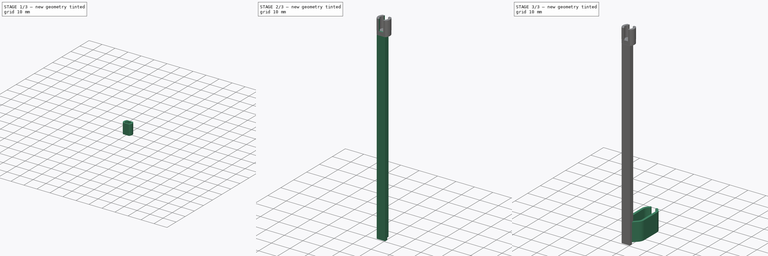
[diagram: build sequence overview — one tinted view per stage of 3, left to right]
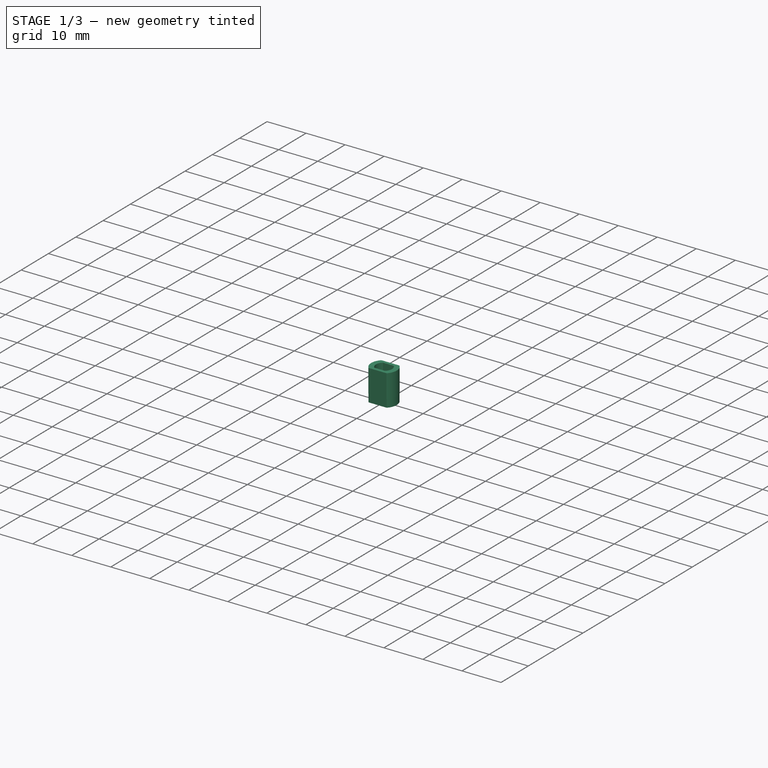
[diagram: stage 1 of 3 — iso view after this stage's code; geometry added in this stage tinted green]
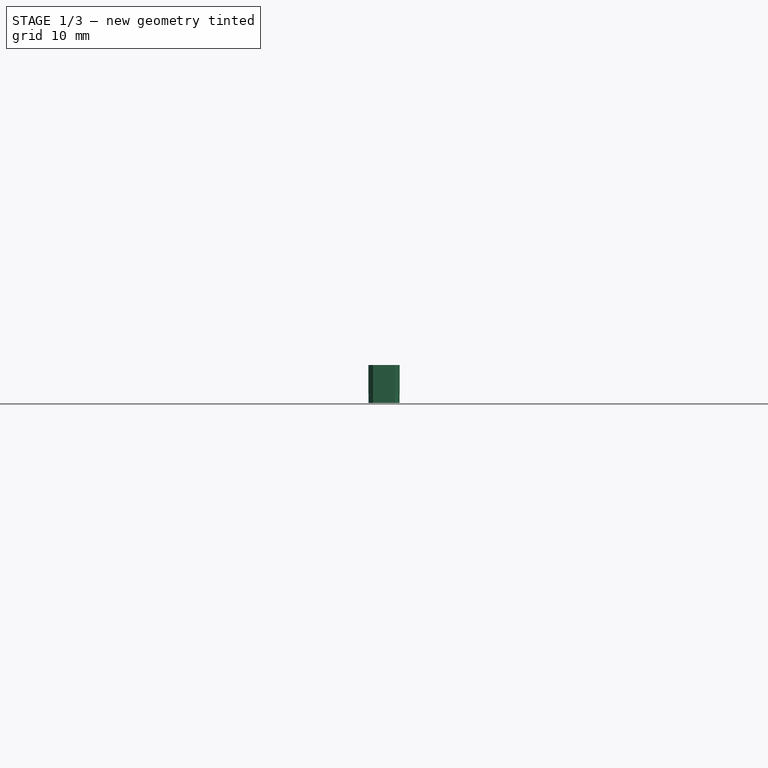
[diagram: stage 1 of 3 — front view after this stage's code; geometry added in this stage tinted green]
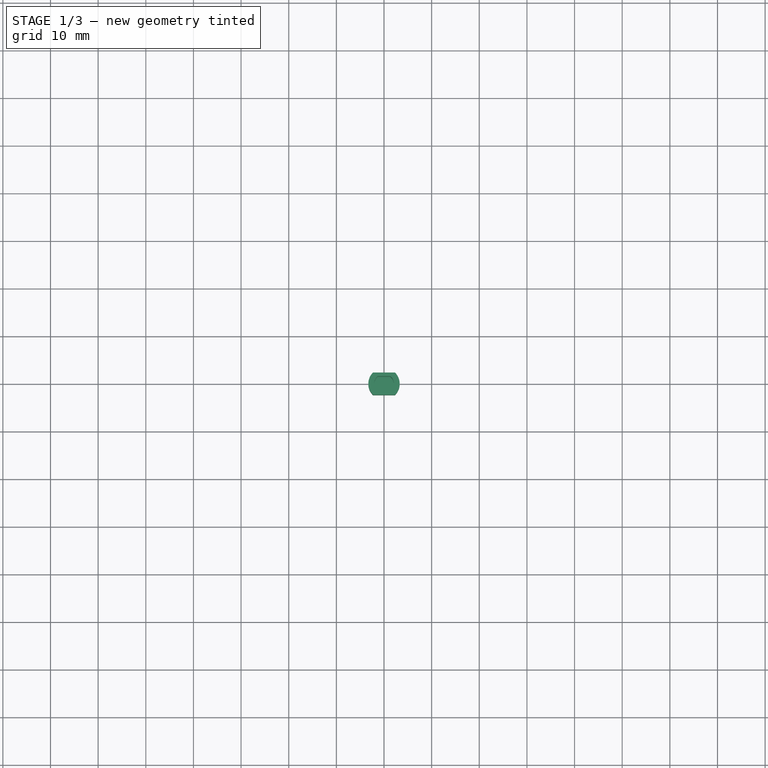
[diagram: stage 1 of 3 — top view after this stage's code; geometry added in this stage tinted green]
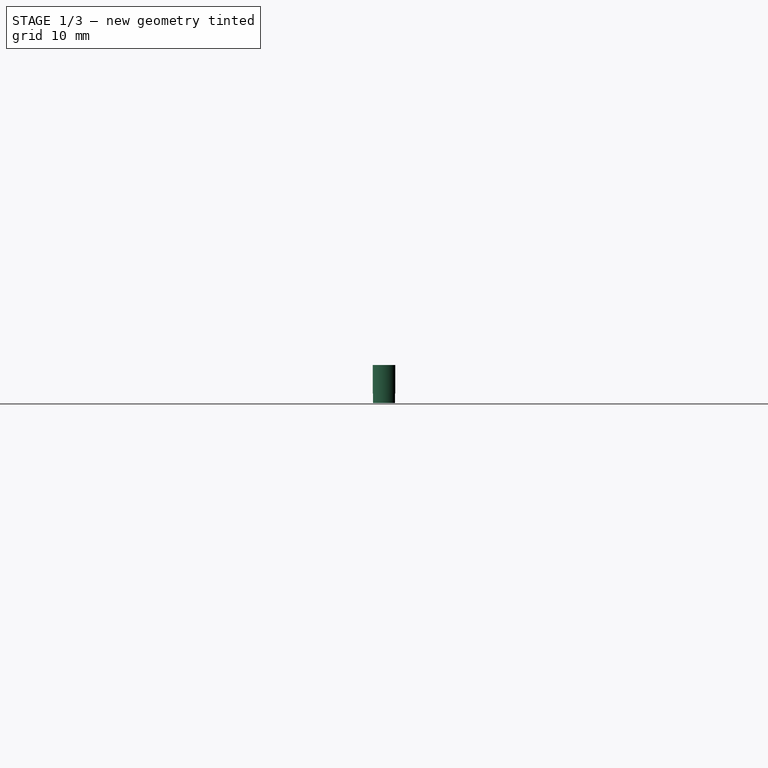
[diagram: stage 1 of 3 — right view after this stage's code; geometry added in this stage tinted green]
FCSTD DOCUMENT  (FreeCAD 0.20R29177 +426 (Git))
Label: SensorArm
License: All rights reserved
LicenseURL: http://en.wikipedia.org/wiki/All_rights_reserved
objects: Sketcher::SketchObject×5, PartDesign::Pad×4, PartDesign::Pocket×1, PartDesign::Mirrored×1, PartDesign::Body×1
note: 17 computed .brp shape members not serialized (recipe doc carries the construction recipe); baked Part::Feature solids carry a one-line shape summary decoded from their .brp

FEATURE [Sketcher::SketchObject] Sketch
  FullyConstrained = true
  MapMode = 5
  Support = -> [XY_Plane]
  sketch-geometry (10):
    g0: ArcOfCircle CenterX=0 CenterY=0 CenterZ=0 NormalX=0 NormalY=0 NormalZ=1 AngleXU=0 Radius=2.05 StartAngle=5.42586 EndAngle=7.14051
    g1: ArcOfCircle CenterX=0 CenterY=0 CenterZ=0 NormalX=0 NormalY=0 NormalZ=1 AngleXU=0 Radius=2.05 StartAngle=2.28426 EndAngle=3.99892
    g2: LineSegment StartX=-1.34164 StartY=1.55 StartZ=0 EndX=1.34164 EndY=1.55 EndZ=0
    g3: LineSegment StartX=1.34164 StartY=-1.55 StartZ=0 EndX=-1.34164 EndY=-1.55 EndZ=0
    g4: ArcOfCircle CenterX=0 CenterY=0 CenterZ=0 NormalX=0 NormalY=0 NormalZ=1 AngleXU=0 Radius=3.28824 StartAngle=2.34544 EndAngle=3.93774
    g5: ArcOfCircle CenterX=0 CenterY=0 CenterZ=0 NormalX=0 NormalY=0 NormalZ=1 AngleXU=0 Radius=3.28824 StartAngle=5.48703 EndAngle=7.07934
    g6: LineSegment StartX=-2.3 StartY=2.35 StartZ=0 EndX=2.3 EndY=2.35 EndZ=0
    g7: LineSegment StartX=-2.3 StartY=-2.35 StartZ=0 EndX=2.3 EndY=-2.35 EndZ=0
    g8: LineSegment StartX=0 StartY=2.35 StartZ=0 EndX=0 EndY=1.55 EndZ=0
    g9: LineSegment StartX=2.05 StartY=0 StartZ=0 EndX=3.28824 EndY=0 EndZ=0
  constraints (31):
    c: Coincident(g1,g-1)
    c: Coincident(g1,g0)
    c: Coincident(g2,g1)
    c: Coincident(g2,g0)
    c: Coincident(g3,g0)
    c: Coincident(g3,g1)
    c: Horizontal(g3)
    c: Horizontal(g2)
    c: Symmetric(g0,g1,g0)
    c: Diameter(g0) = 4.1
    c: DistanceY(g0,g0) = 3.1
    c: Coincident(g4,g0)
    c: Coincident(g5,g0)
    c: Coincident(g6,g4)
    c: Coincident(g6,g5)
    c: Horizontal(g6)
    c: Coincident(g7,g4)
    c: Coincident(g7,g5)
    c: Horizontal(g7)
    c: Symmetric(g5,g4,g0)
    c: PointOnObject(g8,g6)
    c: PointOnObject(g8,g2)
    c: Vertical(g8)
    c: PointOnObject(g8,g-2)
    c: PointOnObject(g9,g0)
    c: PointOnObject(g9,g5)
    c: Horizontal(g9)
    c: PointOnObject(g9,g-1)
    c: DistanceY(g8,g8) = 0.8
    c: DistanceX(g7,g7) = 4.6  'Width'
    c: DistanceY(g5,g5) = 4.7  'Height'
FEATURE [PartDesign::Pad] Pad  label="Tube"
  Direction = (0,0,1)
  Length = 6
  Length2 = 10
  Profile = -> Sketch
  ReferenceAxis = -> Sketch [N_Axis]
  Type = 0
FEATURE [Sketcher::SketchObject] Sketch001
  FullyConstrained = true
  MapMode = 5
  Support = -> [XY_Plane]
  sketch-geometry (10):
    g0: ArcOfCircle CenterX=0 CenterY=0 CenterZ=0 NormalX=0 NormalY=0 NormalZ=1 AngleXU=0 Radius=2 StartAngle=5.43512 EndAngle=7.13125
    g1: ArcOfCircle CenterX=0 CenterY=0 CenterZ=0 NormalX=0 NormalY=0 NormalZ=1 AngleXU=0 Radius=2 StartAngle=2.29353 EndAngle=3.98965
    g2: LineSegment StartX=-1.32288 StartY=1.5 StartZ=0 EndX=1.32288 EndY=1.5 EndZ=0
    g3: LineSegment StartX=1.32288 StartY=-1.5 StartZ=0 EndX=-1.32288 EndY=-1.5 EndZ=0
    g4: ArcOfCircle CenterX=0 CenterY=0 CenterZ=0 NormalX=0 NormalY=0 NormalZ=1 AngleXU=0 Radius=3.25269 StartAngle=2.35619 EndAngle=3.92699
    g5: ArcOfCircle CenterX=0 CenterY=0 CenterZ=0 NormalX=0 NormalY=0 NormalZ=1 AngleXU=0 Radius=3.25269 StartAngle=5.49779 EndAngle=7.06858
    g6: LineSegment StartX=-2.3 StartY=2.3 StartZ=0 EndX=2.3 EndY=2.3 EndZ=0
    g7: LineSegment StartX=-2.3 StartY=-2.3 StartZ=0 EndX=2.3 EndY=-2.3 EndZ=0
    g8: LineSegment StartX=0 StartY=2.3 StartZ=0 EndX=0 EndY=1.5 EndZ=0
    g9: LineSegment StartX=2 StartY=0 StartZ=0 EndX=3.25269 EndY=0 EndZ=0
  constraints (31):
    c: Coincident(g1,g-1)
    c: Coincident(g1,g0)
    c: Coincident(g2,g1)
    c: Coincident(g2,g0)
    c: Coincident(g3,g0)
    c: Coincident(g3,g1)
    c: Horizontal(g3)
    c: Horizontal(g2)
    c: Symmetric(g0,g1,g0)
    c: Diameter(g0) = 4
    c: DistanceY(g0,g0) = 3
    c: Coincident(g4,g0)
    c: Coincident(g5,g0)
    c: Coincident(g6,g4)
    c: Coincident(g6,g5)
    c: Horizontal(g6)
    c: Coincident(g7,g4)
    c: Coincident(g7,g5)
    c: Horizontal(g7)
    c: Symmetric(g5,g4,g0)
    c: PointOnObject(g8,g6)
    c: PointOnObject(g8,g2)
    c: Vertical(g8)
    c: PointOnObject(g8,g-2)
    c: PointOnObject(g9,g0)
    c: PointOnObject(g9,g5)
    c: Horizontal(g9)
    c: PointOnObject(g9,g-1)
    c: DistanceY(g8,g8) = 0.8
    c: DistanceX(g7,g7) = 4.6  'Width'
    c: DistanceY(g5,g5) = 4.6  'Height'
FEATURE [PartDesign::Pad] Pad001  label="Cap"
  BaseFeature = -> Pad
  Direction = (0,0,1)
  Length = 2
  Length2 = 10
  Profile = -> Sketch001
  ReferenceAxis = -> Sketch001 [N_Axis]
  Reversed = true
  Type = 0
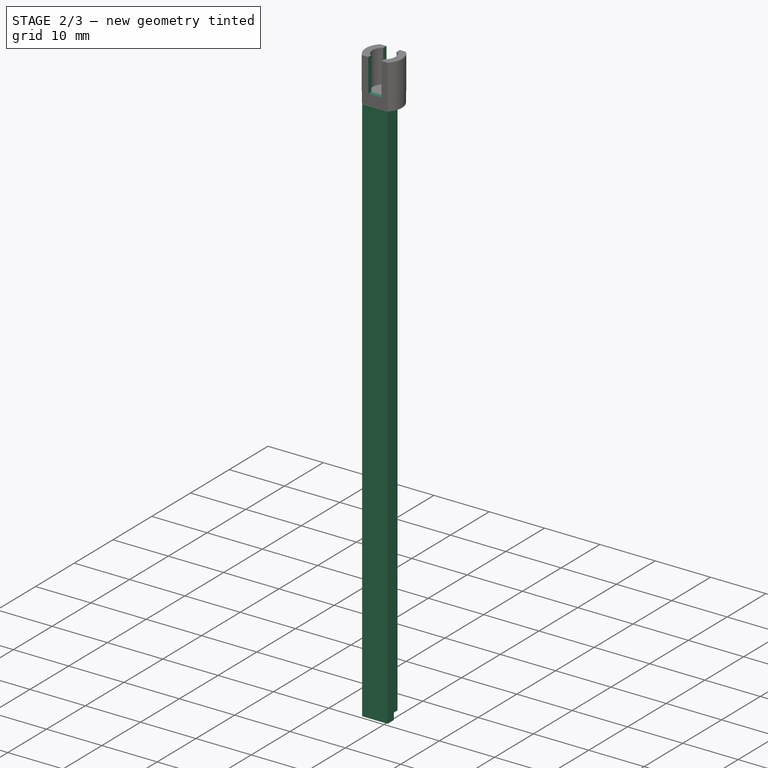
[diagram: stage 2 of 3 — iso view after this stage's code; geometry added in this stage tinted green]
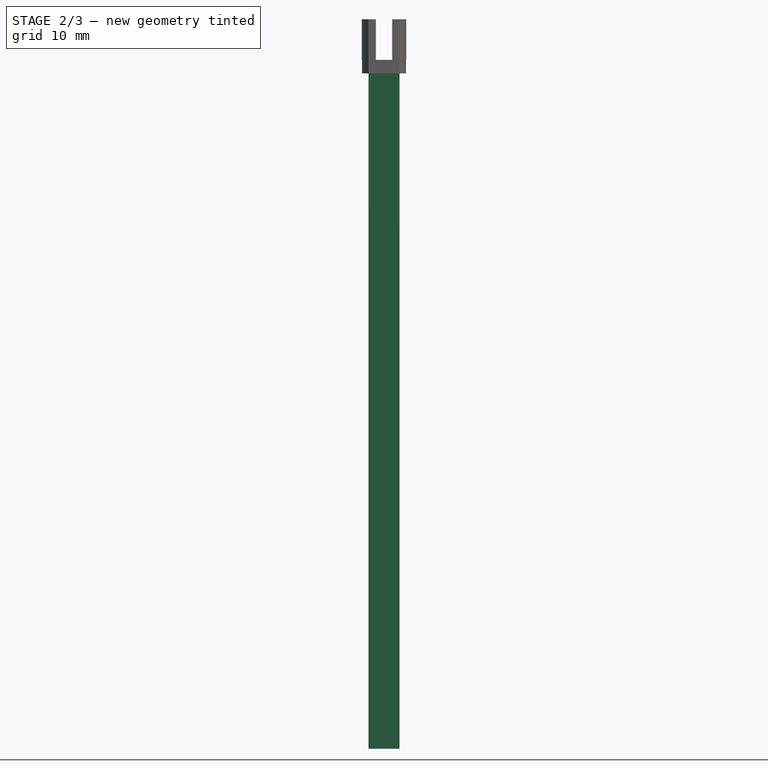
[diagram: stage 2 of 3 — front view after this stage's code; geometry added in this stage tinted green]
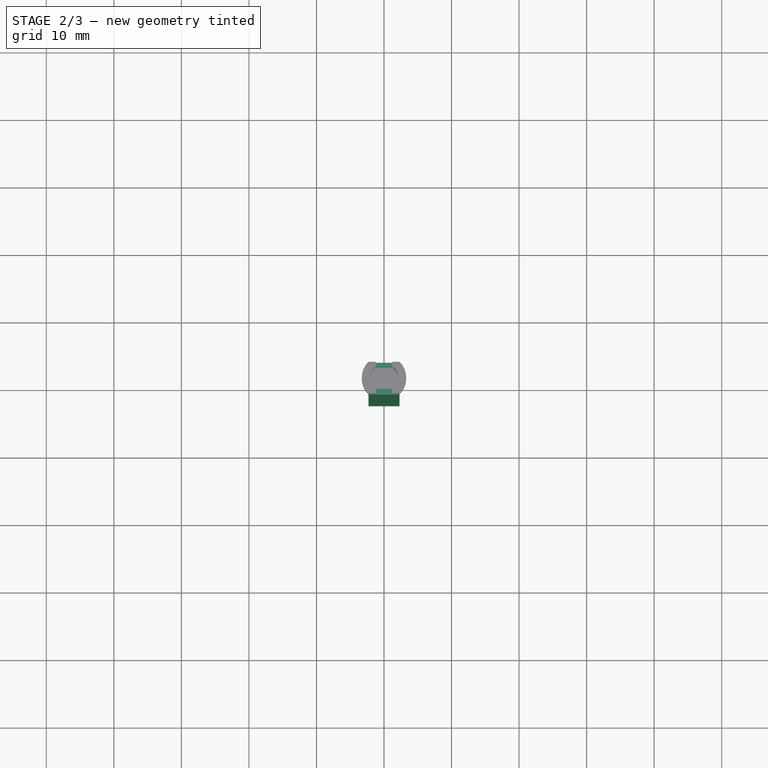
[diagram: stage 2 of 3 — top view after this stage's code; geometry added in this stage tinted green]
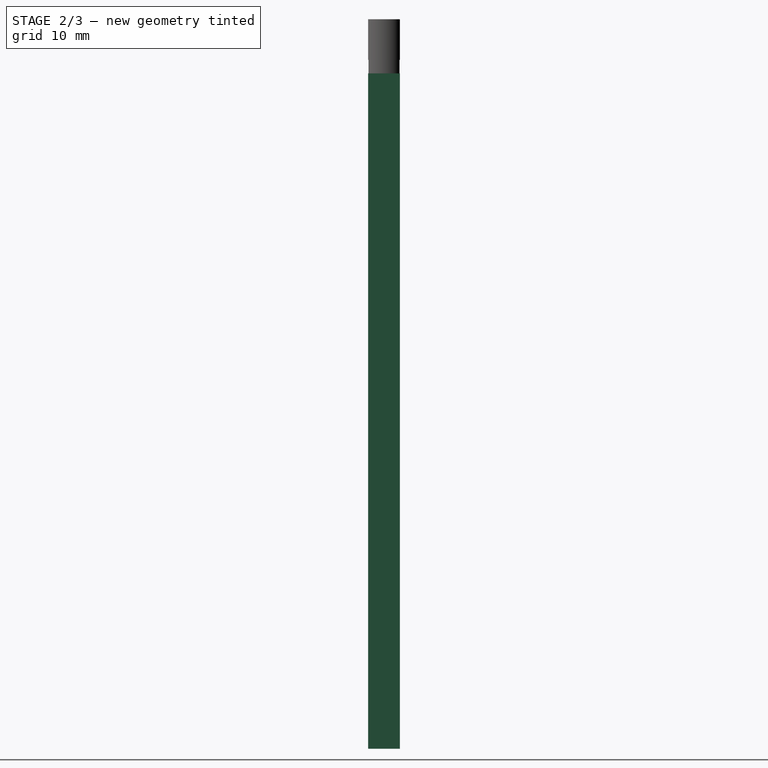
[diagram: stage 2 of 3 — right view after this stage's code; geometry added in this stage tinted green]
FEATURE [Sketcher::SketchObject] Sketch002
  AttachmentOffset = pos=(0,0,-2) rot=(0,0,1;0rad)
  FullyConstrained = true
  MapMode = 5
  Placement = pos=(0,0,-2) rot=(0,0,1;0rad)
  Support = -> [XY_Plane]
  expr: .AttachmentOffset.Base.z = <<Cap>>.Length * -1
  expr: Constraints[25] = <<Sketch>>.Constraints.Height / 2
  expr: Constraints[26] = <<Sketch>>.Constraints.Width
  sketch-geometry (13):
    g0: LineSegment StartX=-0.8 StartY=2.35 StartZ=0 EndX=-0.8 EndY=-0.75 EndZ=0
    g1: LineSegment StartX=-0.8 StartY=-0.75 StartZ=0 EndX=0.8 EndY=-0.75 EndZ=0
    g2: LineSegment StartX=0.8 StartY=-0.75 StartZ=0 EndX=0.8 EndY=2.35 EndZ=0
    g3: LineSegment StartX=0.8 StartY=2.35 StartZ=0 EndX=-0.8 EndY=2.35 EndZ=0
    g4: GeomPoint X=0 Y=0.8 Z=0
    g5: LineSegment StartX=2.3 StartY=-2.35 StartZ=0 EndX=2.3 EndY=-0.75 EndZ=0
    g6: LineSegment StartX=-2.3 StartY=-0.75 StartZ=0 EndX=-2.3 EndY=-2.35 EndZ=0
    g7: LineSegment StartX=-2.3 StartY=-2.35 StartZ=0 EndX=2.3 EndY=-2.35 EndZ=0
    g8: GeomPoint X=0 Y=-1.55 Z=0
    g9: LineSegment StartX=2.3 StartY=-0.75 StartZ=0 EndX=0.8 EndY=-0.75 EndZ=0
    g10: LineSegment StartX=-0.8 StartY=-0.75 StartZ=0 EndX=-2.3 EndY=-0.75 EndZ=0
    g11: LineSegment StartX=0 StartY=0 StartZ=0 EndX=0 EndY=-2.35 EndZ=0
    g12: LineSegment StartX=0 StartY=0 StartZ=0 EndX=0 EndY=2.35 EndZ=0
  constraints (34):
    c: Coincident(g0,g1)
    c: Coincident(g1,g2)
    c: Coincident(g2,g3)
    c: Coincident(g3,g0)
    c: Horizontal(g1)
    c: Horizontal(g3)
    c: Vertical(g0)
    c: Vertical(g2)
    c: Symmetric(g1,g0,g4)
    c: PointOnObject(g4,g-2)
    c: Coincident(g5,g9)
    c: Coincident(g10,g6)
    c: Coincident(g6,g7)
    c: Coincident(g7,g5)
    c: Horizontal(g7)
    c: Vertical(g5)
    c: Vertical(g6)
    c: Symmetric(g10,g5,g8)
    c: PointOnObject(g8,g-2)
    c: Horizontal(g9)
    c: Horizontal(g10)
    c: Coincident(g1,g9)
    c: Coincident(g0,g10)
    c: DistanceY(g5,g5) = 1.6
    c: Equal(g5,g3)
    c: DistanceY(g5,g-1) = 2.35
    c: DistanceX(g7,g7) = 4.6
    c: Coincident(g11,g-1)
    c: PointOnObject(g11,g7)
    c: Vertical(g11)
    c: Coincident(g12,g11)
    c: PointOnObject(g12,g3)
    c: Vertical(g12)
    c: Equal(g12,g11)
FEATURE [PartDesign::Pad] Pad002  label="Beam"
  BaseFeature = -> Pad001
  Direction = (0,0,1)
  Length = 100
  Length2 = 10
  Profile = -> Sketch002
  ReferenceAxis = -> Sketch002 [N_Axis]
  Reversed = true
  Type = 0
FEATURE [Sketcher::SketchObject] Sketch003
  FullyConstrained = true
  MapMode = 5
  Placement = pos=(0,0,0) rot=(1,0,0;1.5708rad)
  Support = -> [XZ_Plane]
  sketch-geometry (5):
    g0: LineSegment StartX=-1.2 StartY=10 StartZ=0 EndX=-1.2 EndY=0 EndZ=0
    g1: LineSegment StartX=-1.2 StartY=0 StartZ=0 EndX=1.2 EndY=0 EndZ=0
    g2: LineSegment StartX=1.2 StartY=0 StartZ=0 EndX=1.2 EndY=10 EndZ=0
    g3: LineSegment StartX=1.2 StartY=10 StartZ=0 EndX=-1.2 EndY=10 EndZ=0
    g4: GeomPoint X=0 Y=5 Z=0
  constraints (13):
    c: Coincident(g0,g1)
    c: Coincident(g1,g2)
    c: Coincident(g2,g3)
    c: Coincident(g3,g0)
    c: Horizontal(g1)
    c: Horizontal(g3)
    c: Vertical(g0)
    c: Vertical(g2)
    c: Symmetric(g1,g0,g4)
    c: PointOnObject(g4,g-2)
    c: PointOnObject(g-1,g1)
    c: DistanceY(g2,g2) = 10
    c: DistanceX(g3,g3) = 2.4
FEATURE [PartDesign::Pocket] Pocket
  BaseFeature = -> Pad002
  Direction = (0,1,2e-16)
  Length = 5
  Length2 = 5
  Midplane = true
  Profile = -> Sketch003
  ReferenceAxis = -> Sketch003 [N_Axis]
  Type = 1
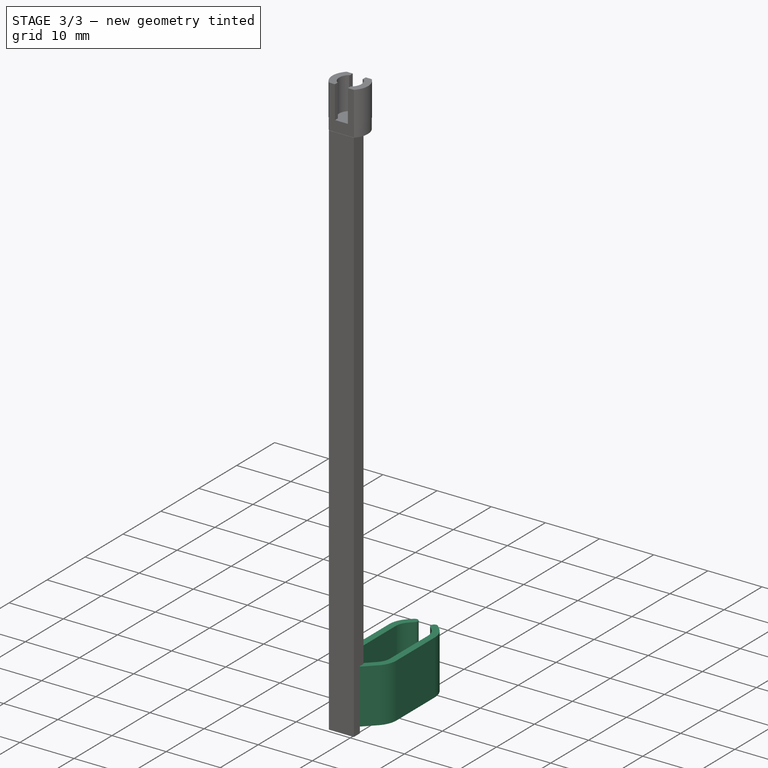
[diagram: stage 3 of 3 — iso view after this stage's code; geometry added in this stage tinted green]
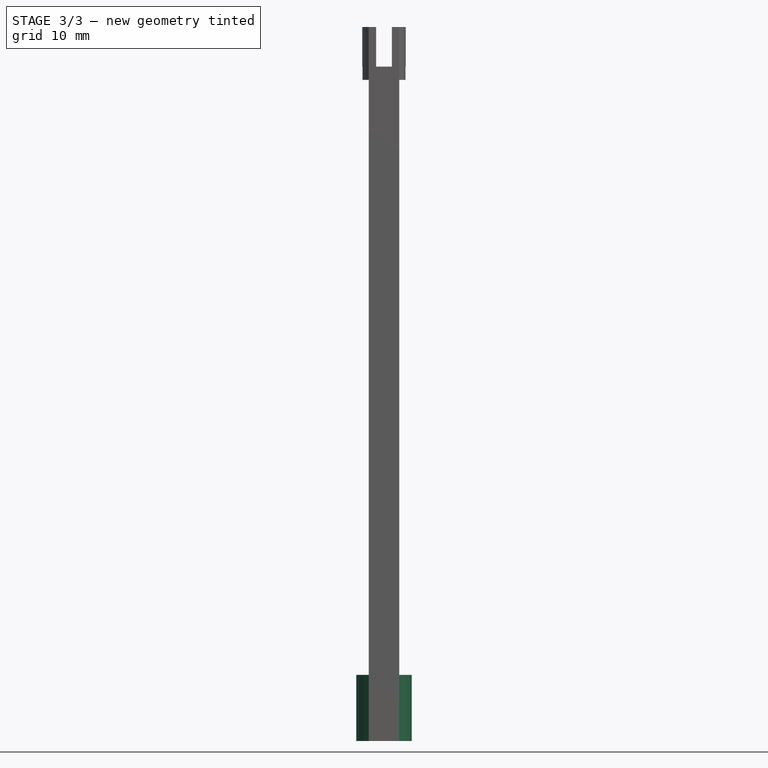
[diagram: stage 3 of 3 — front view after this stage's code; geometry added in this stage tinted green]
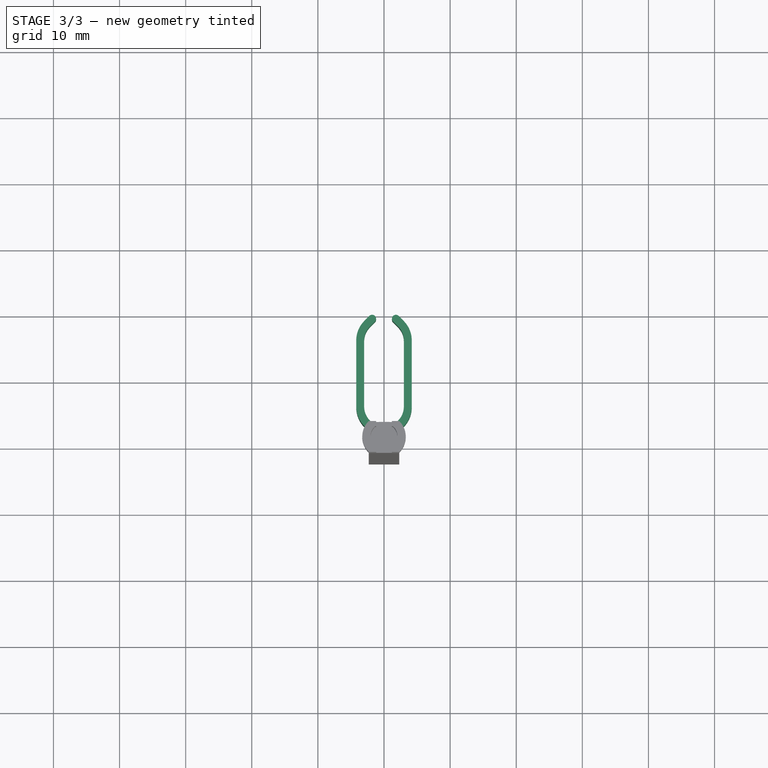
[diagram: stage 3 of 3 — top view after this stage's code; geometry added in this stage tinted green]
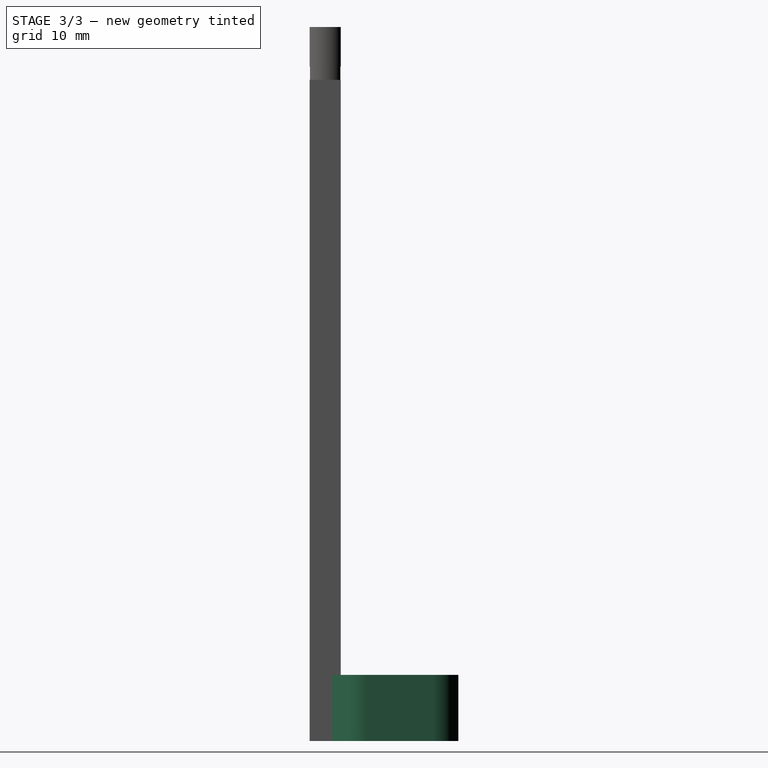
[diagram: stage 3 of 3 — right view after this stage's code; geometry added in this stage tinted green]
FEATURE [Sketcher::SketchObject] Sketch004
  AttachmentOffset = pos=(0,0,-102) rot=(0,0,1;0rad)
  FullyConstrained = true
  MapMode = 5
  Placement = pos=(0,0,-102) rot=(0,0,1;0rad)
  Support = -> [XY_Plane]
  expr: .AttachmentOffset.Base.z = (<<Cap>>.Length + <<Beam>>.Length) * -1
  sketch-geometry (13):
    g0: ArcOfCircle CenterX=0 CenterY=6.24264 CenterZ=0 NormalX=0 NormalY=0 NormalZ=1 AngleXU=0 Radius=3 StartAngle=5.49779 EndAngle=6.28319
    g1: ArcOfCircle CenterX=-1e-16 CenterY=16.2426 CenterZ=0 NormalX=0 NormalY=0 NormalZ=1 AngleXU=0 Radius=3 StartAngle=0 EndAngle=0.785398
    g2: LineSegment StartX=3 StartY=16.2426 StartZ=0 EndX=3 EndY=6.24264 EndZ=0
    g3: LineSegment StartX=2.12132 StartY=4.12132 StartZ=0 EndX=0 EndY=2 EndZ=0
    g4: ArcOfCircle CenterX=0 CenterY=6.24264 CenterZ=0 NormalX=0 NormalY=0 NormalZ=1 AngleXU=0 Radius=4.2 StartAngle=5.49779 EndAngle=6.28319
    g5: ArcOfCircle CenterX=-1e-16 CenterY=16.2426 CenterZ=0 NormalX=0 NormalY=0 NormalZ=1 AngleXU=0 Radius=4.2 StartAngle=3e-16 EndAngle=0.785398
    g6: LineSegment StartX=2.12132 StartY=18.364 StartZ=0 EndX=1.37574 EndY=19.1095 EndZ=0
    g7: LineSegment StartX=2.96985 StartY=19.2125 StartZ=0 EndX=2.22426 EndY=19.9581 EndZ=0
    g8: LineSegment StartX=4.2 StartY=16.2426 StartZ=0 EndX=4.2 EndY=6.24264 EndZ=0
    g9: LineSegment StartX=2.96985 StartY=3.27279 StartZ=0 EndX=0 EndY=0.302944 EndZ=0
    g10: ArcOfCircle CenterX=1.8 CenterY=19.5338 CenterZ=0 NormalX=0 NormalY=0 NormalZ=1 AngleXU=0 Radius=0.6 StartAngle=0.785398 EndAngle=3.92699
    g11: LineSegment StartX=1.2 StartY=19.5338 StartZ=0 EndX=1.2 EndY=0 EndZ=0
    g12: LineSegment StartX=0 StartY=2 StartZ=0 EndX=0 EndY=0.302944 EndZ=0
  constraints (33):
    c: Tangent(g2,g1) = 1.5708
    c: Tangent(g2,g0) = 1.5708
    c: Tangent(g3,g0) = 1.5708
    c: Coincident(g4,g0)
    c: Coincident(g5,g1)
    c: Tangent(g7,g5) = -1.5708
    c: Tangent(g6,g1) = -1.5708
    c: Tangent(g8,g4) = 1.5708
    c: Tangent(g8,g5) = 1.5708
    c: Vertical(g2)
    c: Vertical(g8)
    c: Parallel(g7,g6)
    c: Parallel(g9,g3)
    c: Tangent(g9,g4) = 1.5708
    c: DistanceX(g0,g4) = 1.2
    c: Angle(g-1,g9) = 0.785398
    c: DistanceX(g-1,g0) = 3
    c: Radius(g0) = 3
    c: Equal(g0,g1)
    c: Perpendicular(g3,g6)
    c: Tangent(g10,g7) = -1.5708
    c: Tangent(g10,g6) = 1.5708
    c: DistanceY(g0,g1) = 10
    c: PointOnObject(g11,g10)
    c: Vertical(g11)
    c: Tangent(g11,g10)
    c: PointOnObject(g11,g-1)
    c: DistanceX(g1,g11) = 1.2
    c: PointOnObject(g9,g-2)
    c: PointOnObject(g3,g-2)
    c: DistanceY(g-1,g3) = 2
    c: Coincident(g12,g3)
    c: Coincident(g12,g9)
FEATURE [PartDesign::Pad] Pad003  label="CableClip"
  BaseFeature = -> Pocket
  Direction = (0,0,1)
  Length = 10
  Length2 = 10
  Profile = -> Sketch004
  ReferenceAxis = -> Sketch004 [N_Axis]
  Type = 0
FEATURE [PartDesign::Mirrored] Mirrored  label="CableClipMirror"
  BaseFeature = -> Pad003
  MirrorPlane = -> Sketch004 [V_Axis]
  Originals = -> [Pad003]
FEATURE [PartDesign::Body] Body
  Group = -> [Sketch,Pad,Sketch001,Pad001,Sketch002,Pad002,Sketch003,Pocket,Sketch004,Pad003,Mirrored]
  Origin = -> Origin
  Tip = -> Mirrored
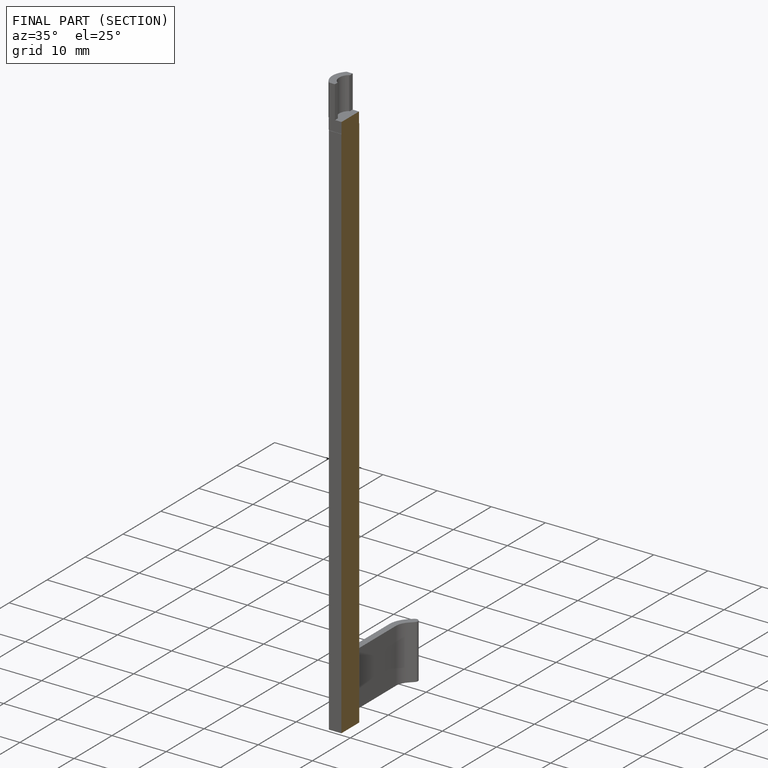
[diagram: finished part — half-section view (interior)]
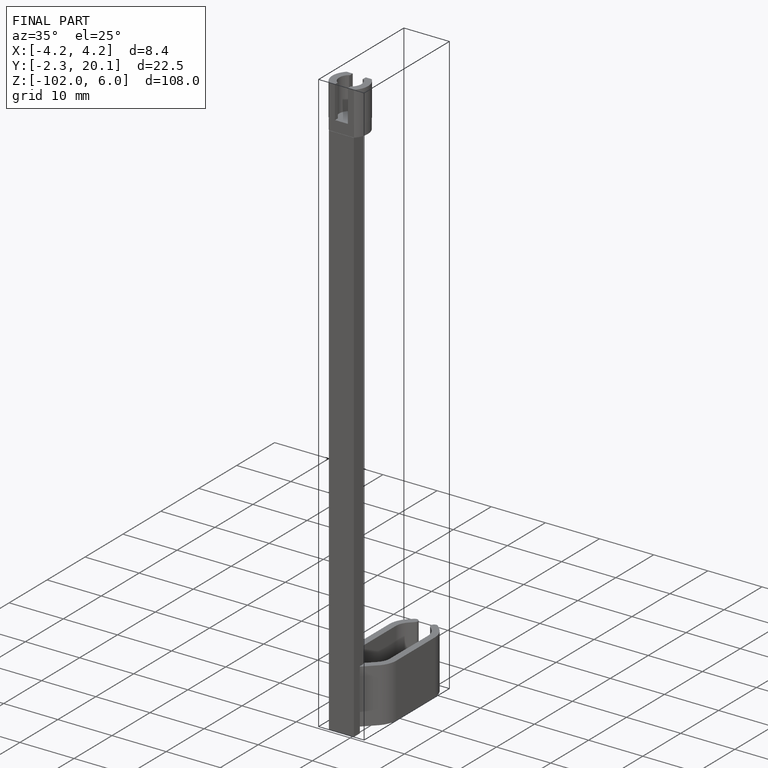
[diagram: finished part — iso view with bounding-box wireframe]
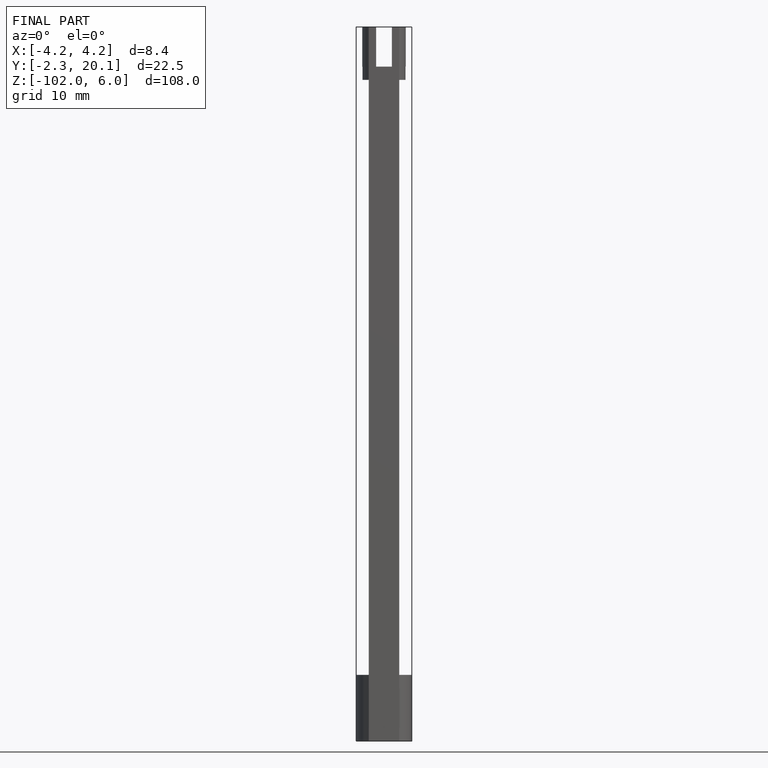
[diagram: finished part — front view with bounding-box wireframe]
